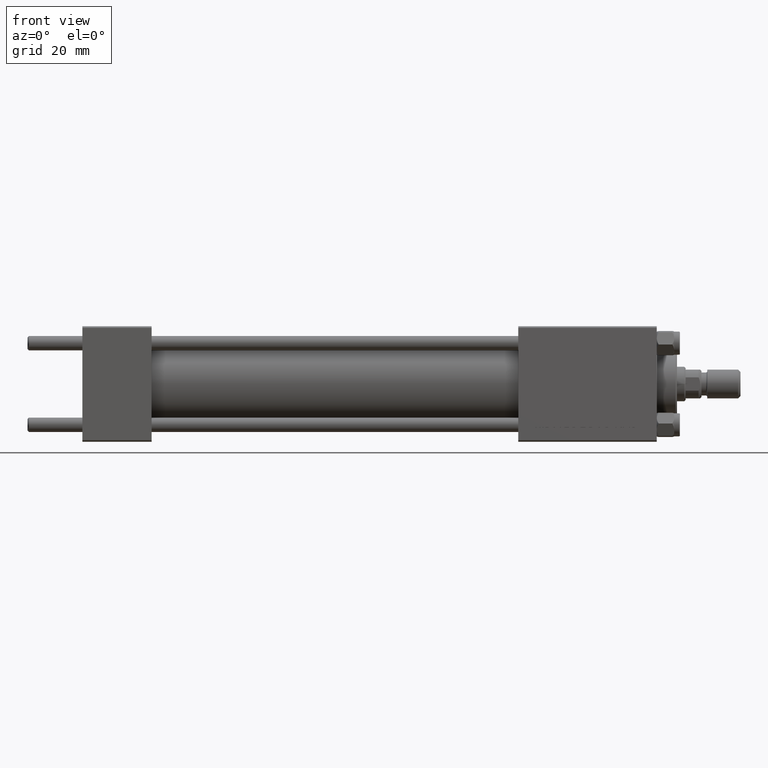
[diagram: clean part render]
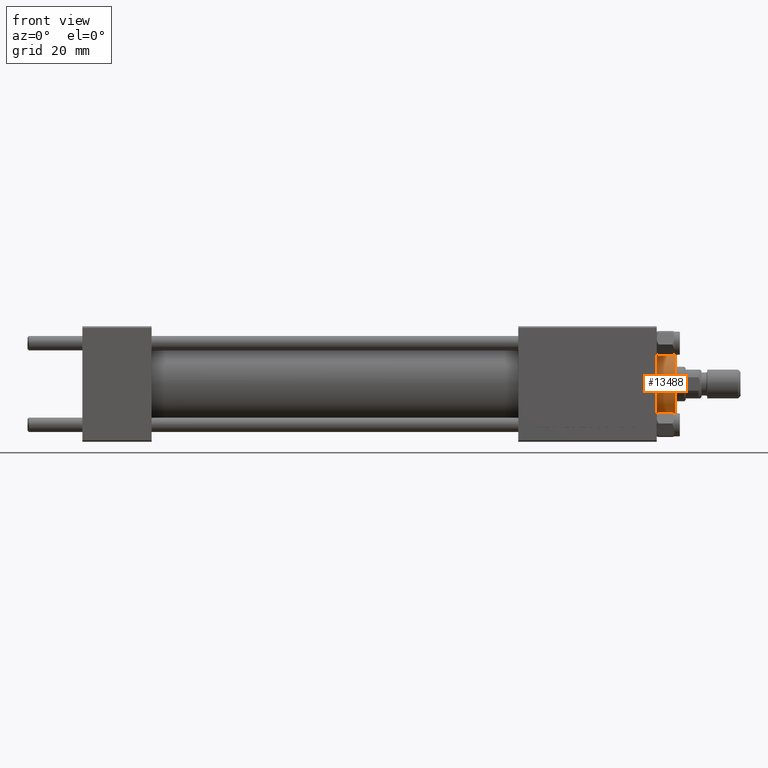
[diagram: same view with one face highlighted and labeled with its STEP entity id]
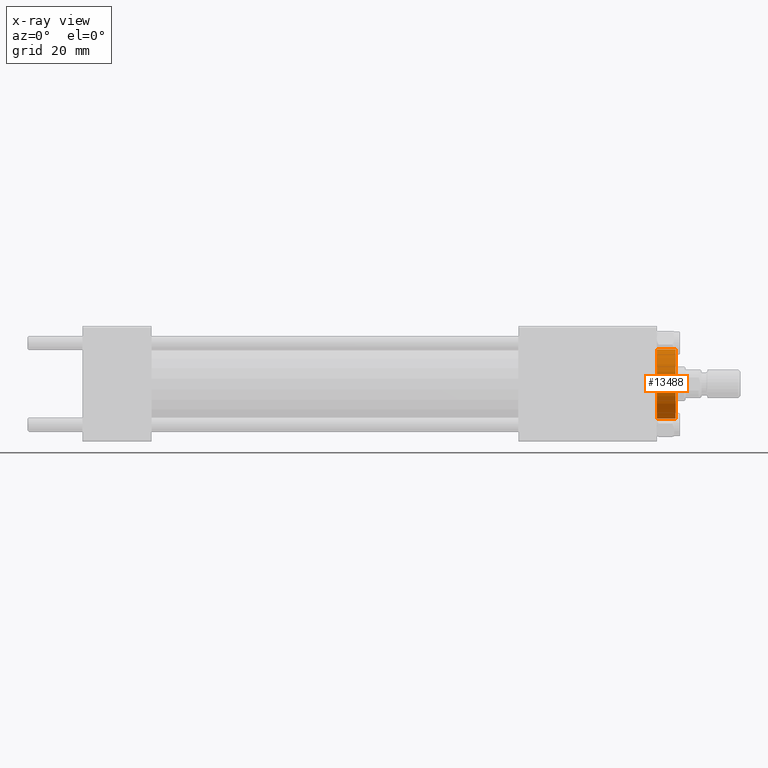
[diagram: x-ray of the same camera — body ghosted, the highlighted face saturated]
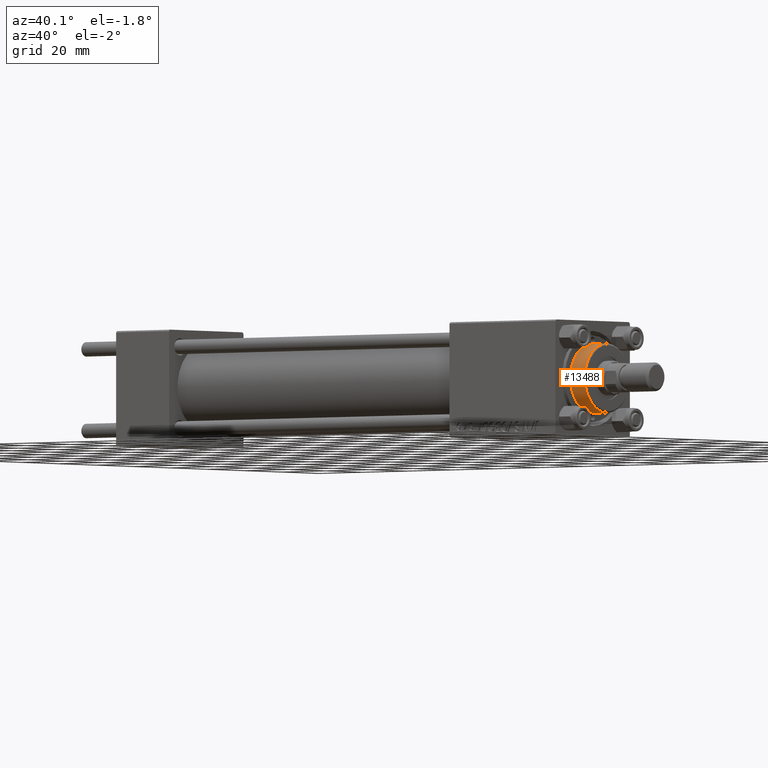
[diagram: same view with one face highlighted and labeled with its STEP entity id]
A machine part, front view. The second image highlights one B-rep face of the part: STEP entity #13488.
The next image is the same camera in x-ray: the body ghosted, the highlighted face saturated — about 0% of this face is hidden behind the body in this view.
A second angle (auxiliary view) of the same face is appended — the face is thin or edge-on in the first view.
In plain terms, the highlighted cylindrical surface (edge-blend (fillet) strip) has radius 12 mm, axis along (-1, -0, 0).
Its self-contained STEP definition (entity closure, byte-faithful):
#2230 = CARTESIAN_POINT ( 'NONE',  ( 0.000000000000000000, 0.000000000000000000, 35.70000000000000284 ) ) ;
#3077 = CARTESIAN_POINT ( 'NONE',  ( 12.00000000000000178, 1.469576158976824144E-15, 35.70000000000000284 ) ) ;
#3581 = LINE ( 'NONE', #3077, #11077 ) ;
#6225 = ORIENTED_EDGE ( 'NONE', *, *, #41117, .F. ) ;
#6305 = FACE_OUTER_BOUND ( 'NONE', #38449, .T. ) ;
#7559 = AXIS2_PLACEMENT_3D ( 'NONE', #2230, #29013, #9639 ) ;
#7988 = DIRECTION ( 'NONE',  ( 1.000000000000000000, 0.000000000000000000, 0.000000000000000000 ) ) ;
#8185 = VERTEX_POINT ( 'NONE', #47867 ) ;
#9237 = VERTEX_POINT ( 'NONE', #28198 ) ;
#9639 = DIRECTION ( 'NONE',  ( -1.000000000000000000, 0.000000000000000000, 0.000000000000000000 ) ) ;
#11077 = VECTOR ( 'NONE', #15573, 1000.000000000000000 ) ;
#12071 = CARTESIAN_POINT ( 'NONE',  ( 0.000000000000000000, 0.000000000000000000, 35.19999999999999574 ) ) ;
#12366 = LINE ( 'NONE', #18191, #25434 ) ;
#12394 = AXIS2_PLACEMENT_3D ( 'NONE', #18709, #30673, #15151 ) ;
#12420 = VERTEX_POINT ( 'NONE', #22922 ) ;
#12635 = ORIENTED_EDGE ( 'NONE', *, *, #29062, .T. ) ;
#13372 = AXIS2_PLACEMENT_3D ( 'NONE', #12071, #42910, #7988 ) ;
#13488 = ADVANCED_FACE ( 'NONE', ( #6305 ), #28069, .T. ) ;
#15151 = DIRECTION ( 'NONE',  ( 1.000000000000000000, 0.000000000000000000, 0.000000000000000000 ) ) ;
#15573 = DIRECTION ( 'NONE',  ( -0.000000000000000000, -0.000000000000000000, -1.000000000000000000 ) ) ;
#18191 = CARTESIAN_POINT ( 'NONE',  ( -12.00000000000000178, 0.000000000000000000, 35.70000000000000284 ) ) ;
#18709 = CARTESIAN_POINT ( 'NONE',  ( 0.000000000000000000, 0.000000000000000000, 28.69999999999999929 ) ) ;
#20671 = EDGE_CURVE ( 'NONE', #9237, #12420, #30430, .T. ) ;
#22922 = CARTESIAN_POINT ( 'NONE',  ( -12.00000000000000178, 0.000000000000000000, 35.19999999999999574 ) ) ;
#24157 = ORIENTED_EDGE ( 'NONE', *, *, #20671, .T. ) ;
#25434 = VECTOR ( 'NONE', #44701, 1000.000000000000000 ) ;
#27841 = CIRCLE ( 'NONE', #12394, 12.00000000000000178 ) ;
#28069 = CYLINDRICAL_SURFACE ( 'NONE', #7559, 12.00000000000000178 ) ;
#28198 = CARTESIAN_POINT ( 'NONE',  ( 12.00000000000000178, 1.469576158976824144E-15, 35.19999999999999574 ) ) ;
#29013 = DIRECTION ( 'NONE',  ( -0.000000000000000000, -0.000000000000000000, -1.000000000000000000 ) ) ;
#29062 = EDGE_CURVE ( 'NONE', #32974, #8185, #27841, .T. ) ;
#30430 = CIRCLE ( 'NONE', #13372, 12.00000000000000178 ) ;
#30673 = DIRECTION ( 'NONE',  ( 0.000000000000000000, 0.000000000000000000, 1.000000000000000000 ) ) ;
#32556 = EDGE_CURVE ( 'NONE', #12420, #32974, #12366, .T. ) ;
#32974 = VERTEX_POINT ( 'NONE', #45337 ) ;
#38449 = EDGE_LOOP ( 'NONE', ( #6225, #24157, #38965, #12635 ) ) ;
#38965 = ORIENTED_EDGE ( 'NONE', *, *, #32556, .T. ) ;
#41117 = EDGE_CURVE ( 'NONE', #9237, #8185, #3581, .T. ) ;
#42910 = DIRECTION ( 'NONE',  ( 0.000000000000000000, 0.000000000000000000, -1.000000000000000000 ) ) ;
#44701 = DIRECTION ( 'NONE',  ( -0.000000000000000000, -0.000000000000000000, -1.000000000000000000 ) ) ;
#45337 = CARTESIAN_POINT ( 'NONE',  ( -12.00000000000000178, 0.000000000000000000, 28.69999999999999929 ) ) ;
#47867 = CARTESIAN_POINT ( 'NONE',  ( 12.00000000000000178, 0.000000000000000000, 28.69999999999999929 ) ) ;